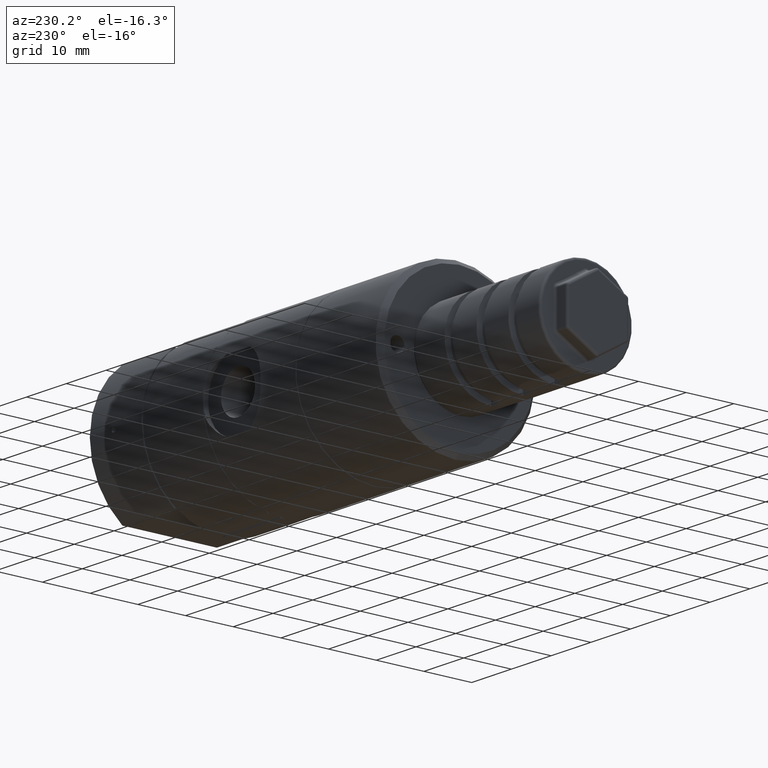
[diagram: clean part render]
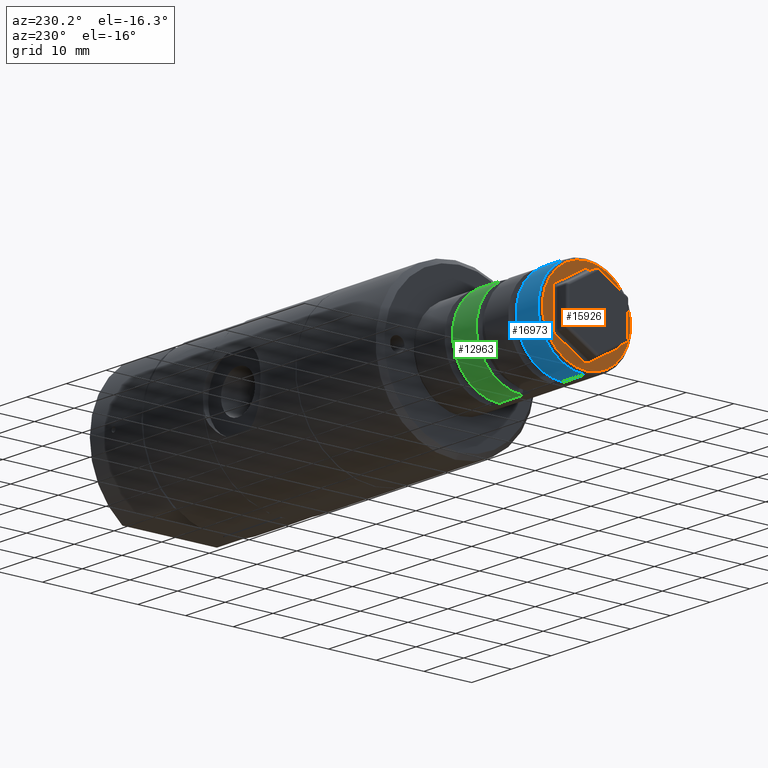
[diagram: same view with three faces highlighted in distinct colors, each labeled with its STEP entity id]
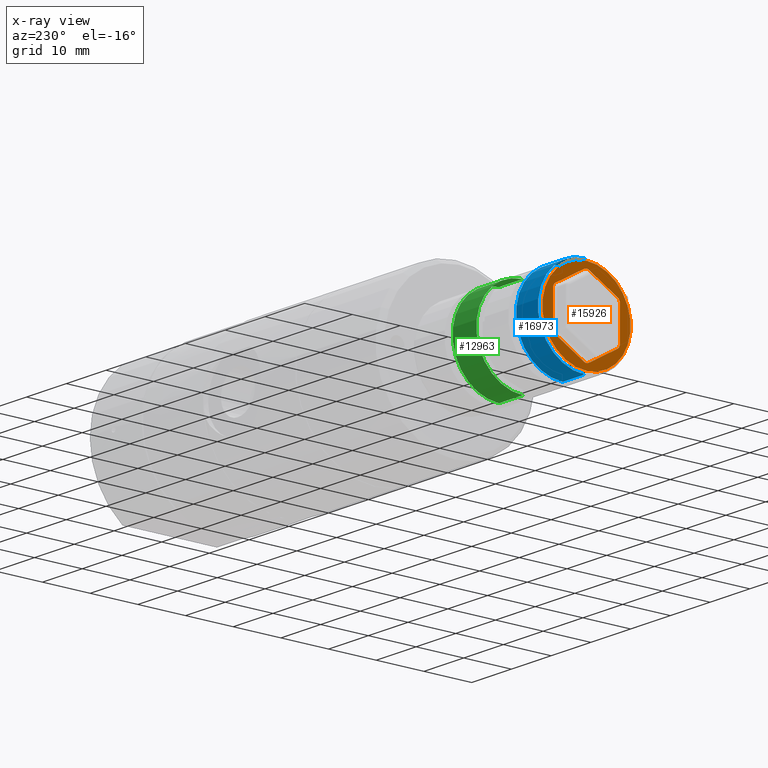
[diagram: x-ray of the same camera — body ghosted, the three highlighted faces saturated]
A machine part, auxiliary view with three faces highlighted in distinct colors.
The next image is the same camera in x-ray (body ghosted, the three faces saturated) — at least one of them is partly hidden behind the body in this view.
Their STEP definitions:

[orange] entity #15926 — the highlighted planar face has unit normal (-1, 0, 0).
#9 = EDGE_CURVE ( 'NONE', #10288, #4602, #5472, .T. ) ;
#375 = CARTESIAN_POINT ( 'NONE',  ( -104.8999999999999900, 7.000000000000000000, -3.464101615137754800 ) ) ;
#435 = ORIENTED_EDGE ( 'NONE', *, *, #12108, .T. ) ;
#576 = LINE ( 'NONE', #2454, #9603 ) ;
#729 = LINE ( 'NONE', #14887, #7252 ) ;
#785 = CARTESIAN_POINT ( 'NONE',  ( -104.8999999999999900, -7.000000000000000000, 3.464101615137765000 ) ) ;
#796 = CIRCLE ( 'NONE', #10692, 1.000000000000000000 ) ;
#906 = CARTESIAN_POINT ( 'NONE',  ( -104.8999999999999900, 7.000000000000000000, 3.464101615137754800 ) ) ;
#925 = ORIENTED_EDGE ( 'NONE', *, *, #10688, .F. ) ;
#966 = DIRECTION ( 'NONE',  ( -1.000000000000000000, 0.0000000000000000000, 0.0000000000000000000 ) ) ;
#1364 = VERTEX_POINT ( 'NONE', #3215 ) ;
#1384 = CARTESIAN_POINT ( 'NONE',  ( -104.8999999999999900, -2.966594276553059800E-016, -6.928203230275509700 ) ) ;
#1386 = AXIS2_PLACEMENT_3D ( 'NONE', #7431, #17586, #13280 ) ;
#1416 = AXIS2_PLACEMENT_3D ( 'NONE', #15870, #10139, #2871 ) ;
#1417 = EDGE_LOOP ( 'NONE', ( #9808, #8501 ) ) ;
#1670 = CARTESIAN_POINT ( 'NONE',  ( -104.8999999999999900, -7.000000000000000000, 1.133951663004783900E-015 ) ) ;
#1974 = AXIS2_PLACEMENT_3D ( 'NONE', #10529, #3304, #13460 ) ;
#2047 = EDGE_CURVE ( 'NONE', #6121, #1364, #576, .T. ) ;
#2421 = DIRECTION ( 'NONE',  ( 0.0000000000000000000, 2.775557561562892800E-016, 1.000000000000000000 ) ) ;
#2426 = CIRCLE ( 'NONE', #14614, 1.000000000000000000 ) ;
#2454 = CARTESIAN_POINT ( 'NONE',  ( -104.8999999999999900, -3.500000000000000000, -6.062177826491070400 ) ) ;
#2871 = DIRECTION ( 'NONE',  ( 0.0000000000000000000, 2.775557561562889900E-016, 1.000000000000000000 ) ) ;
#2924 = VECTOR ( 'NONE', #7708, 1000.000000000000000 ) ;
#3215 = CARTESIAN_POINT ( 'NONE',  ( -104.8999999999999900, -0.5000000000000000000, -7.794228634059950700 ) ) ;
#3254 = CARTESIAN_POINT ( 'NONE',  ( -104.8999999999999900, 6.500000000000000000, 4.330127018922191000 ) ) ;
#3266 = VERTEX_POINT ( 'NONE', #375 ) ;
#3304 = DIRECTION ( 'NONE',  ( -1.000000000000000000, 0.0000000000000000000, 0.0000000000000000000 ) ) ;
#3529 = LINE ( 'NONE', #8260, #10322 ) ;
#3637 = VERTEX_POINT ( 'NONE', #7202 ) ;
#3683 = ORIENTED_EDGE ( 'NONE', *, *, #14756, .F. ) ;
#4115 = FACE_OUTER_BOUND ( 'NONE', #1417, .T. ) ;
#4530 = CIRCLE ( 'NONE', #11584, 1.000000000000000000 ) ;
#4602 = VERTEX_POINT ( 'NONE', #14831 ) ;
#4752 = CARTESIAN_POINT ( 'NONE',  ( -104.8999999999999900, 6.000000000000000000, 3.464101615137754800 ) ) ;
#4862 = VECTOR ( 'NONE', #13242, 1000.000000000000000 ) ;
#5200 = EDGE_CURVE ( 'NONE', #12172, #11696, #9850, .T. ) ;
#5219 = CARTESIAN_POINT ( 'NONE',  ( -104.8999999999999900, 2.567390744445673300E-015, 9.250000000000000000 ) ) ;
#5467 = DIRECTION ( 'NONE',  ( -0.0000000000000000000, -0.8660254037844387100, 0.4999999999999998900 ) ) ;
#5472 = CIRCLE ( 'NONE', #9317, 0.9999999999999991100 ) ;
#5639 = DIRECTION ( 'NONE',  ( 0.0000000000000000000, 0.0000000000000000000, 1.000000000000000000 ) ) ;
#5738 = CIRCLE ( 'NONE', #11008, 9.250000000000000000 ) ;
#5993 = VERTEX_POINT ( 'NONE', #7177 ) ;
#6113 = EDGE_CURVE ( 'NONE', #16964, #15312, #18667, .T. ) ;
#6121 = VERTEX_POINT ( 'NONE', #16443 ) ;
#6262 = EDGE_CURVE ( 'NONE', #3266, #13189, #796, .T. ) ;
#6324 = DIRECTION ( 'NONE',  ( -0.0000000000000000000, 0.8660254037844387100, 0.4999999999999998900 ) ) ;
#6370 = ORIENTED_EDGE ( 'NONE', *, *, #5200, .F. ) ;
#7031 = ORIENTED_EDGE ( 'NONE', *, *, #7051, .T. ) ;
#7051 = EDGE_CURVE ( 'NONE', #16964, #4602, #3529, .T. ) ;
#7177 = CARTESIAN_POINT ( 'NONE',  ( -104.8999999999999900, -1.473365224294760300E-015, -9.250000000000000000 ) ) ;
#7202 = CARTESIAN_POINT ( 'NONE',  ( -104.8999999999999900, -7.000000000000000000, -3.464101615137749900 ) ) ;
#7252 = VECTOR ( 'NONE', #6324, 1000.000000000000000 ) ;
#7431 = CARTESIAN_POINT ( 'NONE',  ( -104.8999999999999900, -6.000000000000000000, 3.464101615137765000 ) ) ;
#7658 = CARTESIAN_POINT ( 'NONE',  ( -104.8999999999999900, 0.5000000000000000000, -7.794228634059950700 ) ) ;
#7708 = DIRECTION ( 'NONE',  ( -0.0000000000000000000, 5.086810790389290000E-016, 1.000000000000000000 ) ) ;
#7930 = ORIENTED_EDGE ( 'NONE', *, *, #6262, .F. ) ;
#8260 = CARTESIAN_POINT ( 'NONE',  ( -104.8999999999999900, 3.500000000000000000, 6.062177826491070400 ) ) ;
#8304 = CARTESIAN_POINT ( 'NONE',  ( -104.8999999999999900, 6.000000000000000000, -3.464101615137754800 ) ) ;
#8316 = DIRECTION ( 'NONE',  ( 0.0000000000000000000, 2.775557561562890400E-016, 1.000000000000000000 ) ) ;
#8501 = ORIENTED_EDGE ( 'NONE', *, *, #9697, .T. ) ;
#8520 = ORIENTED_EDGE ( 'NONE', *, *, #6113, .F. ) ;
#8767 = ORIENTED_EDGE ( 'NONE', *, *, #15814, .T. ) ;
#8972 = DIRECTION ( 'NONE',  ( 0.0000000000000000000, 0.0000000000000000000, 1.000000000000000000 ) ) ;
#9317 = AXIS2_PLACEMENT_3D ( 'NONE', #9328, #16507, #16557 ) ;
#9328 = CARTESIAN_POINT ( 'NONE',  ( -104.8999999999999900, -1.370214413388936200E-016, 6.928203230275509700 ) ) ;
#9383 = EDGE_CURVE ( 'NONE', #6121, #3637, #2426, .T. ) ;
#9603 = VECTOR ( 'NONE', #11107, 1000.000000000000000 ) ;
#9617 = CARTESIAN_POINT ( 'NONE',  ( -104.8999999999999900, -1.370214413388936200E-016, 6.928203230275509700 ) ) ;
#9697 = EDGE_CURVE ( 'NONE', #5993, #15770, #12359, .T. ) ;
#9808 = ORIENTED_EDGE ( 'NONE', *, *, #13693, .T. ) ;
#9850 = CIRCLE ( 'NONE', #1386, 1.000000000000000000 ) ;
#10139 = DIRECTION ( 'NONE',  ( -1.000000000000000000, 0.0000000000000000000, 0.0000000000000000000 ) ) ;
#10224 = CARTESIAN_POINT ( 'NONE',  ( -104.8999999999999900, -0.5000000000000000000, 7.794228634059950700 ) ) ;
#10288 = VERTEX_POINT ( 'NONE', #15014 ) ;
#10322 = VECTOR ( 'NONE', #5467, 1000.000000000000000 ) ;
#10529 = CARTESIAN_POINT ( 'NONE',  ( -104.8999999999999900, 0.0000000000000000000, 0.0000000000000000000 ) ) ;
#10614 = LINE ( 'NONE', #17807, #2924 ) ;
#10688 = EDGE_CURVE ( 'NONE', #14136, #1364, #4530, .T. ) ;
#10692 = AXIS2_PLACEMENT_3D ( 'NONE', #8304, #14334, #5639 ) ;
#10717 = ORIENTED_EDGE ( 'NONE', *, *, #17795, .T. ) ;
#10933 = ORIENTED_EDGE ( 'NONE', *, *, #9383, .F. ) ;
#11008 = AXIS2_PLACEMENT_3D ( 'NONE', #17842, #12057, #13660 ) ;
#11107 = DIRECTION ( 'NONE',  ( -0.0000000000000000000, 0.8660254037844387100, -0.4999999999999998900 ) ) ;
#11154 = AXIS2_PLACEMENT_3D ( 'NONE', #9617, #966, #2421 ) ;
#11494 = DIRECTION ( 'NONE',  ( -0.0000000000000000000, -0.8660254037844387100, -0.4999999999999998900 ) ) ;
#11584 = AXIS2_PLACEMENT_3D ( 'NONE', #1384, #12688, #8316 ) ;
#11696 = VERTEX_POINT ( 'NONE', #13326 ) ;
#11782 = EDGE_LOOP ( 'NONE', ( #6370, #435, #10933, #12938, #925, #14335, #7930, #10717, #8520, #7031, #15724, #3683, #8767 ) ) ;
#12057 = DIRECTION ( 'NONE',  ( -1.000000000000000000, 0.0000000000000000000, 0.0000000000000000000 ) ) ;
#12108 = EDGE_CURVE ( 'NONE', #12172, #3637, #18712, .T. ) ;
#12172 = VERTEX_POINT ( 'NONE', #785 ) ;
#12359 = CIRCLE ( 'NONE', #1416, 9.250000000000000000 ) ;
#12643 = AXIS2_PLACEMENT_3D ( 'NONE', #4752, #15107, #16559 ) ;
#12688 = DIRECTION ( 'NONE',  ( -1.000000000000000000, 0.0000000000000000000, 0.0000000000000000000 ) ) ;
#12938 = ORIENTED_EDGE ( 'NONE', *, *, #2047, .T. ) ;
#13189 = VERTEX_POINT ( 'NONE', #14137 ) ;
#13242 = DIRECTION ( 'NONE',  ( -0.0000000000000000000, -1.619930947149689800E-016, -1.000000000000000000 ) ) ;
#13280 = DIRECTION ( 'NONE',  ( 0.0000000000000000000, 0.0000000000000000000, 1.000000000000000000 ) ) ;
#13326 = CARTESIAN_POINT ( 'NONE',  ( -104.8999999999999900, -6.500000000000000000, 4.330127018922199900 ) ) ;
#13460 = DIRECTION ( 'NONE',  ( 0.0000000000000000000, 2.775557561562890400E-016, 1.000000000000000000 ) ) ;
#13660 = DIRECTION ( 'NONE',  ( 0.0000000000000000000, 2.775557561562889900E-016, 1.000000000000000000 ) ) ;
#13693 = EDGE_CURVE ( 'NONE', #15770, #5993, #5738, .T. ) ;
#14136 = VERTEX_POINT ( 'NONE', #7658 ) ;
#14137 = CARTESIAN_POINT ( 'NONE',  ( -104.8999999999999900, 6.500000000000000000, -4.330127018922195400 ) ) ;
#14334 = DIRECTION ( 'NONE',  ( -1.000000000000000000, 0.0000000000000000000, 0.0000000000000000000 ) ) ;
#14335 = ORIENTED_EDGE ( 'NONE', *, *, #16250, .T. ) ;
#14614 = AXIS2_PLACEMENT_3D ( 'NONE', #14731, #16206, #8972 ) ;
#14731 = CARTESIAN_POINT ( 'NONE',  ( -104.8999999999999900, -6.000000000000000000, -3.464101615137749900 ) ) ;
#14756 = EDGE_CURVE ( 'NONE', #16833, #10288, #18658, .T. ) ;
#14831 = CARTESIAN_POINT ( 'NONE',  ( -104.8999999999999900, 0.5000000000000000000, 7.794228634059950700 ) ) ;
#14843 = PLANE ( 'NONE',  #1974 ) ;
#14887 = CARTESIAN_POINT ( 'NONE',  ( -104.8999999999999900, 3.500000000000000000, -6.062177826491070400 ) ) ;
#15014 = CARTESIAN_POINT ( 'NONE',  ( -104.8999999999999900, 1.405343148173954100E-016, 7.928203230275508800 ) ) ;
#15107 = DIRECTION ( 'NONE',  ( -1.000000000000000000, 0.0000000000000000000, 0.0000000000000000000 ) ) ;
#15312 = VERTEX_POINT ( 'NONE', #906 ) ;
#15724 = ORIENTED_EDGE ( 'NONE', *, *, #9, .F. ) ;
#15770 = VERTEX_POINT ( 'NONE', #5219 ) ;
#15814 = EDGE_CURVE ( 'NONE', #16833, #11696, #16151, .T. ) ;
#15870 = CARTESIAN_POINT ( 'NONE',  ( -104.8999999999999900, 0.0000000000000000000, 0.0000000000000000000 ) ) ;
#15926 = ADVANCED_FACE ( 'NONE', ( #4115, #16825 ), #14843, .T. ) ;
#16151 = LINE ( 'NONE', #16962, #16368 ) ;
#16206 = DIRECTION ( 'NONE',  ( -1.000000000000000000, 0.0000000000000000000, 0.0000000000000000000 ) ) ;
#16250 = EDGE_CURVE ( 'NONE', #14136, #13189, #729, .T. ) ;
#16368 = VECTOR ( 'NONE', #11494, 1000.000000000000000 ) ;
#16443 = CARTESIAN_POINT ( 'NONE',  ( -104.8999999999999900, -6.500000000000000000, -4.330127018922185700 ) ) ;
#16507 = DIRECTION ( 'NONE',  ( -1.000000000000000000, 0.0000000000000000000, 0.0000000000000000000 ) ) ;
#16557 = DIRECTION ( 'NONE',  ( 0.0000000000000000000, 2.775557561562892800E-016, 1.000000000000000000 ) ) ;
#16559 = DIRECTION ( 'NONE',  ( 0.0000000000000000000, 0.0000000000000000000, 1.000000000000000000 ) ) ;
#16825 = FACE_BOUND ( 'NONE', #11782, .T. ) ;
#16833 = VERTEX_POINT ( 'NONE', #10224 ) ;
#16962 = CARTESIAN_POINT ( 'NONE',  ( -104.8999999999999900, -3.500000000000000000, 6.062177826491081100 ) ) ;
#16964 = VERTEX_POINT ( 'NONE', #3254 ) ;
#17586 = DIRECTION ( 'NONE',  ( -1.000000000000000000, 0.0000000000000000000, 0.0000000000000000000 ) ) ;
#17795 = EDGE_CURVE ( 'NONE', #3266, #15312, #10614, .T. ) ;
#17807 = CARTESIAN_POINT ( 'NONE',  ( -104.8999999999999900, 7.000000000000000000, -3.560767553272504400E-015 ) ) ;
#17842 = CARTESIAN_POINT ( 'NONE',  ( -104.8999999999999900, 0.0000000000000000000, 0.0000000000000000000 ) ) ;
#18658 = CIRCLE ( 'NONE', #11154, 0.9999999999999991100 ) ;
#18667 = CIRCLE ( 'NONE', #12643, 1.000000000000000000 ) ;
#18712 = LINE ( 'NONE', #1670, #4862 ) ;

[blue] entity #16973 — the highlighted cylindrical surface (partial cylindrical patch) has radius 9.75 mm, axis along (1, 0, 0).
#211 = DIRECTION ( 'NONE',  ( 1.000000000000000000, 0.0000000000000000000, 0.0000000000000000000 ) ) ;
#533 = VERTEX_POINT ( 'NONE', #4247 ) ;
#1984 = VERTEX_POINT ( 'NONE', #7820 ) ;
#2138 = VECTOR ( 'NONE', #16065, 1000.000000000000000 ) ;
#2286 = EDGE_CURVE ( 'NONE', #533, #2798, #14584, .T. ) ;
#2293 = FACE_OUTER_BOUND ( 'NONE', #5578, .T. ) ;
#2676 = EDGE_CURVE ( 'NONE', #1984, #2798, #3677, .T. ) ;
#2798 = VERTEX_POINT ( 'NONE', #18561 ) ;
#3126 = CARTESIAN_POINT ( 'NONE',  ( -104.4000000000000100, 3.900199251692487600E-015, 9.750000000000000000 ) ) ;
#3221 = EDGE_CURVE ( 'NONE', #533, #12989, #4360, .T. ) ;
#3677 = CIRCLE ( 'NONE', #16264, 9.750000000000000000 ) ;
#4247 = CARTESIAN_POINT ( 'NONE',  ( -104.4000000000000100, -2.706168622523817900E-015, -9.750000000000000000 ) ) ;
#4360 = CIRCLE ( 'NONE', #8610, 9.750000000000000000 ) ;
#4917 = VECTOR ( 'NONE', #211, 1000.000000000000000 ) ;
#5578 = EDGE_LOOP ( 'NONE', ( #15655, #9212, #9522, #13446 ) ) ;
#5783 = CARTESIAN_POINT ( 'NONE',  ( -104.8999999999999900, -2.706168622523817900E-015, -9.750000000000000000 ) ) ;
#6892 = DIRECTION ( 'NONE',  ( 0.0000000000000000000, 2.775557561562890400E-016, 1.000000000000000000 ) ) ;
#6926 = LINE ( 'NONE', #10418, #4917 ) ;
#7357 = DIRECTION ( 'NONE',  ( 0.0000000000000000000, 2.775557561562890400E-016, 1.000000000000000000 ) ) ;
#7596 = EDGE_CURVE ( 'NONE', #12989, #1984, #6926, .T. ) ;
#7624 = DIRECTION ( 'NONE',  ( 0.0000000000000000000, -2.775557561562890400E-016, -1.000000000000000000 ) ) ;
#7820 = CARTESIAN_POINT ( 'NONE',  ( -98.90000000000000600, 2.706168622523819900E-015, 9.750000000000000000 ) ) ;
#8290 = DIRECTION ( 'NONE',  ( -1.000000000000000000, 0.0000000000000000000, 0.0000000000000000000 ) ) ;
#8610 = AXIS2_PLACEMENT_3D ( 'NONE', #16119, #14591, #7357 ) ;
#8614 = AXIS2_PLACEMENT_3D ( 'NONE', #11937, #17959, #7624 ) ;
#8834 = CYLINDRICAL_SURFACE ( 'NONE', #8614, 9.750000000000000000 ) ;
#9212 = ORIENTED_EDGE ( 'NONE', *, *, #7596, .T. ) ;
#9522 = ORIENTED_EDGE ( 'NONE', *, *, #2676, .T. ) ;
#10418 = CARTESIAN_POINT ( 'NONE',  ( -104.8999999999999900, 3.900199251692487600E-015, 9.750000000000000000 ) ) ;
#11937 = CARTESIAN_POINT ( 'NONE',  ( -104.8999999999999900, 0.0000000000000000000, 0.0000000000000000000 ) ) ;
#12989 = VERTEX_POINT ( 'NONE', #3126 ) ;
#13446 = ORIENTED_EDGE ( 'NONE', *, *, #2286, .F. ) ;
#14133 = CARTESIAN_POINT ( 'NONE',  ( -98.90000000000000600, 0.0000000000000000000, 0.0000000000000000000 ) ) ;
#14584 = LINE ( 'NONE', #5783, #2138 ) ;
#14591 = DIRECTION ( 'NONE',  ( 1.000000000000000000, -0.0000000000000000000, -0.0000000000000000000 ) ) ;
#15655 = ORIENTED_EDGE ( 'NONE', *, *, #3221, .T. ) ;
#16065 = DIRECTION ( 'NONE',  ( 1.000000000000000000, 0.0000000000000000000, 0.0000000000000000000 ) ) ;
#16119 = CARTESIAN_POINT ( 'NONE',  ( -104.4000000000000100, 0.0000000000000000000, 0.0000000000000000000 ) ) ;
#16264 = AXIS2_PLACEMENT_3D ( 'NONE', #14133, #8290, #6892 ) ;
#16973 = ADVANCED_FACE ( 'NONE', ( #2293 ), #8834, .T. ) ;
#17959 = DIRECTION ( 'NONE',  ( 1.000000000000000000, 0.0000000000000000000, 0.0000000000000000000 ) ) ;
#18561 = CARTESIAN_POINT ( 'NONE',  ( -98.90000000000000600, -1.512177427547000100E-015, -9.750000000000000000 ) ) ;

[green] entity #12963 — the highlighted cylindrical surface (partial cylindrical patch) has radius 9.75 mm, axis along (1, 0, 0).
#1657 = DIRECTION ( 'NONE',  ( -1.000000000000000000, 0.0000000000000000000, 0.0000000000000000000 ) ) ;
#1662 = CARTESIAN_POINT ( 'NONE',  ( -88.90000000000000600, -1.512177427547000100E-015, -9.750000000000000000 ) ) ;
#2410 = LINE ( 'NONE', #8574, #3288 ) ;
#2783 = VECTOR ( 'NONE', #12517, 1000.000000000000000 ) ;
#2854 = ORIENTED_EDGE ( 'NONE', *, *, #4394, .F. ) ;
#3288 = VECTOR ( 'NONE', #12964, 1000.000000000000000 ) ;
#3759 = AXIS2_PLACEMENT_3D ( 'NONE', #16142, #1657, #13108 ) ;
#4252 = EDGE_CURVE ( 'NONE', #5353, #9417, #6608, .T. ) ;
#4301 = DIRECTION ( 'NONE',  ( 0.0000000000000000000, 2.775557561562890400E-016, 1.000000000000000000 ) ) ;
#4394 = EDGE_CURVE ( 'NONE', #8218, #16402, #2410, .T. ) ;
#5353 = VERTEX_POINT ( 'NONE', #16307 ) ;
#6275 = EDGE_CURVE ( 'NONE', #5353, #8218, #11856, .T. ) ;
#6608 = LINE ( 'NONE', #15314, #2783 ) ;
#8218 = VERTEX_POINT ( 'NONE', #1662 ) ;
#8574 = CARTESIAN_POINT ( 'NONE',  ( -104.8999999999999900, -2.706168622523817900E-015, -9.750000000000000000 ) ) ;
#9417 = VERTEX_POINT ( 'NONE', #17411 ) ;
#11374 = CARTESIAN_POINT ( 'NONE',  ( -82.90000000000000600, -2.706168622523819900E-015, -9.750000000000000000 ) ) ;
#11455 = ORIENTED_EDGE ( 'NONE', *, *, #6275, .F. ) ;
#11684 = AXIS2_PLACEMENT_3D ( 'NONE', #15993, #17318, #4301 ) ;
#11856 = CIRCLE ( 'NONE', #11684, 9.750000000000000000 ) ;
#11885 = CYLINDRICAL_SURFACE ( 'NONE', #12952, 9.750000000000000000 ) ;
#12517 = DIRECTION ( 'NONE',  ( 1.000000000000000000, 0.0000000000000000000, 0.0000000000000000000 ) ) ;
#12952 = AXIS2_PLACEMENT_3D ( 'NONE', #17027, #14171, #18477 ) ;
#12963 = ADVANCED_FACE ( 'NONE', ( #16209 ), #11885, .T. ) ;
#12964 = DIRECTION ( 'NONE',  ( 1.000000000000000000, 0.0000000000000000000, 0.0000000000000000000 ) ) ;
#13108 = DIRECTION ( 'NONE',  ( 0.0000000000000000000, 2.775557561562890400E-016, 1.000000000000000000 ) ) ;
#14171 = DIRECTION ( 'NONE',  ( 1.000000000000000000, 0.0000000000000000000, 0.0000000000000000000 ) ) ;
#15134 = ORIENTED_EDGE ( 'NONE', *, *, #18198, .T. ) ;
#15314 = CARTESIAN_POINT ( 'NONE',  ( -104.8999999999999900, 3.900199251692487600E-015, 9.750000000000000000 ) ) ;
#15993 = CARTESIAN_POINT ( 'NONE',  ( -88.90000000000000600, 0.0000000000000000000, 0.0000000000000000000 ) ) ;
#16142 = CARTESIAN_POINT ( 'NONE',  ( -82.90000000000000600, 0.0000000000000000000, 0.0000000000000000000 ) ) ;
#16209 = FACE_OUTER_BOUND ( 'NONE', #18418, .T. ) ;
#16307 = CARTESIAN_POINT ( 'NONE',  ( -88.90000000000000600, 2.706168622523819900E-015, 9.750000000000000000 ) ) ;
#16402 = VERTEX_POINT ( 'NONE', #11374 ) ;
#17027 = CARTESIAN_POINT ( 'NONE',  ( -104.8999999999999900, 0.0000000000000000000, 0.0000000000000000000 ) ) ;
#17318 = DIRECTION ( 'NONE',  ( -1.000000000000000000, 0.0000000000000000000, 0.0000000000000000000 ) ) ;
#17411 = CARTESIAN_POINT ( 'NONE',  ( -82.90000000000000600, 2.706168622523819900E-015, 9.750000000000000000 ) ) ;
#18105 = CIRCLE ( 'NONE', #3759, 9.750000000000000000 ) ;
#18198 = EDGE_CURVE ( 'NONE', #9417, #16402, #18105, .T. ) ;
#18418 = EDGE_LOOP ( 'NONE', ( #11455, #18499, #15134, #2854 ) ) ;
#18477 = DIRECTION ( 'NONE',  ( 0.0000000000000000000, -2.775557561562890400E-016, -1.000000000000000000 ) ) ;
#18499 = ORIENTED_EDGE ( 'NONE', *, *, #4252, .T. ) ;